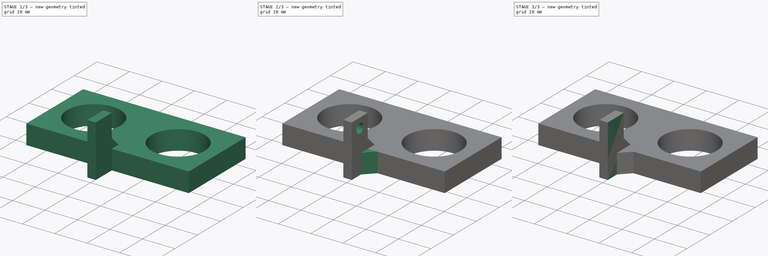
[diagram: build sequence overview — one tinted view per stage of 3, left to right]
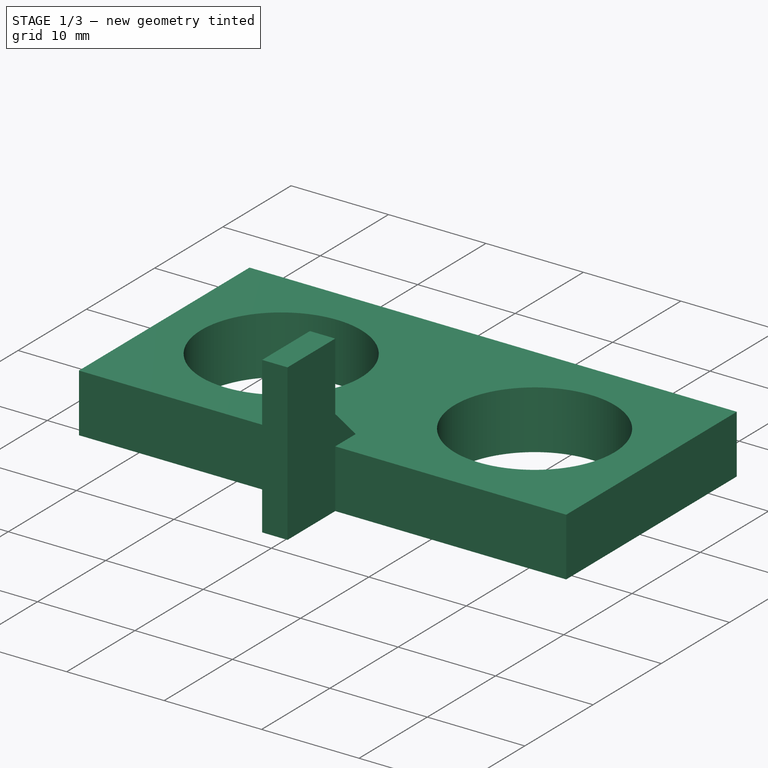
[diagram: stage 1 of 3 — iso view after this stage's code; geometry added in this stage tinted green]
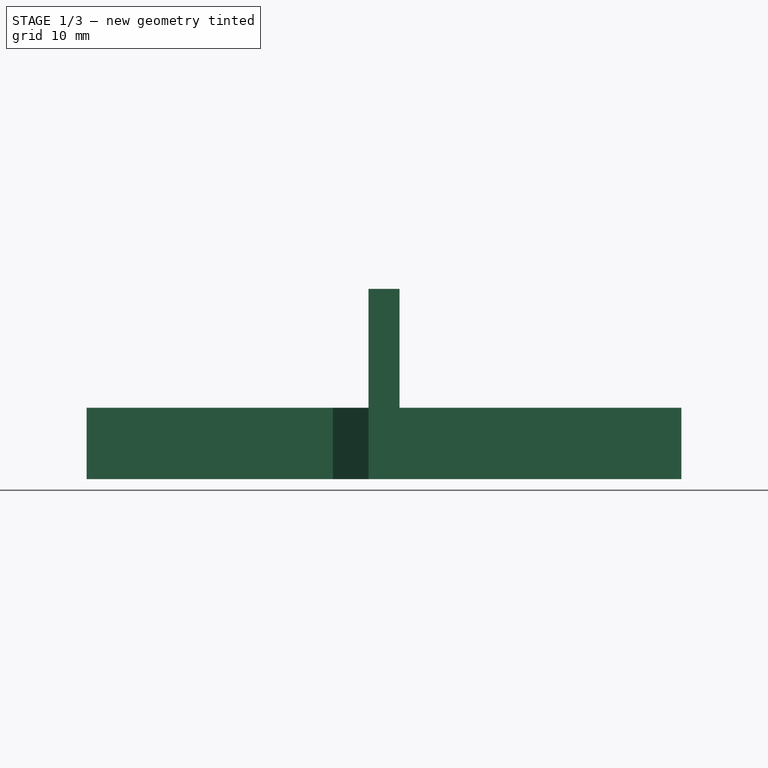
[diagram: stage 1 of 3 — front view after this stage's code; geometry added in this stage tinted green]
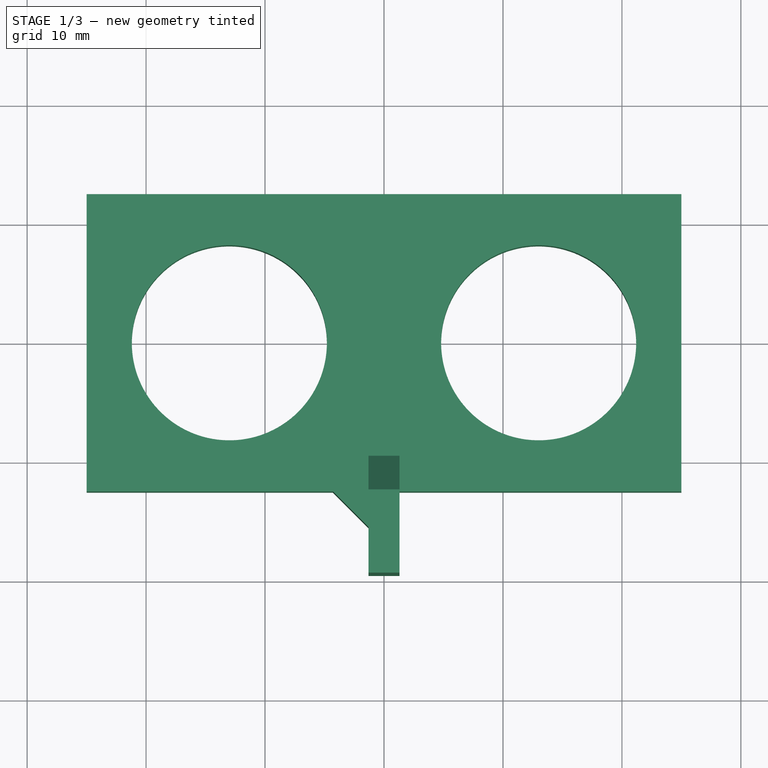
[diagram: stage 1 of 3 — top view after this stage's code; geometry added in this stage tinted green]
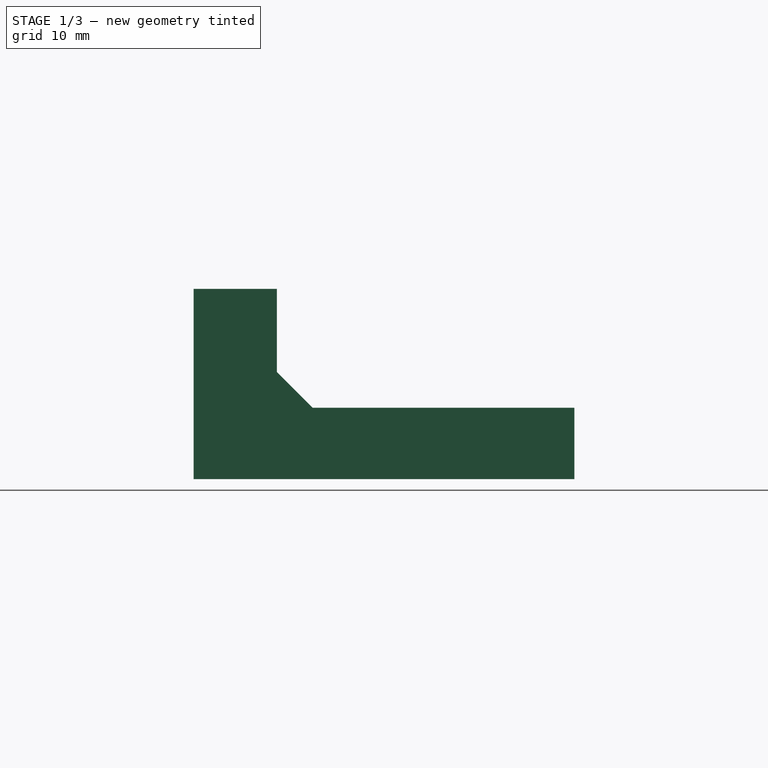
[diagram: stage 1 of 3 — right view after this stage's code; geometry added in this stage tinted green]
FCSTD DOCUMENT  (FreeCAD 0.16R6712 (Git))
Label: hcsr04Sensor05
License: All rights reserved
LicenseURL: http://en.wikipedia.org/wiki/All_rights_reserved
objects: Sketcher::SketchObject×4, PartDesign::Pad×3, PartDesign::Chamfer×3, Part::Feature×1, PartDesign::Pocket×1
note: 16 computed .brp shape members not serialized (recipe doc carries the construction recipe); baked Part::Feature solids carry a one-line shape summary decoded from their .brp

FEATURE [Part::Feature] Pad002001  label="Pad003"
  shape: bbox 50 x 32 x 16 mm, 14 faces (baked)
FEATURE [PartDesign::Chamfer] Chamfer
  Base = -> Pad002001 [Edge13]
  Size = 3
FEATURE [PartDesign::Chamfer] Chamfer001
  Base = -> Chamfer [Edge15]
  Size = 3
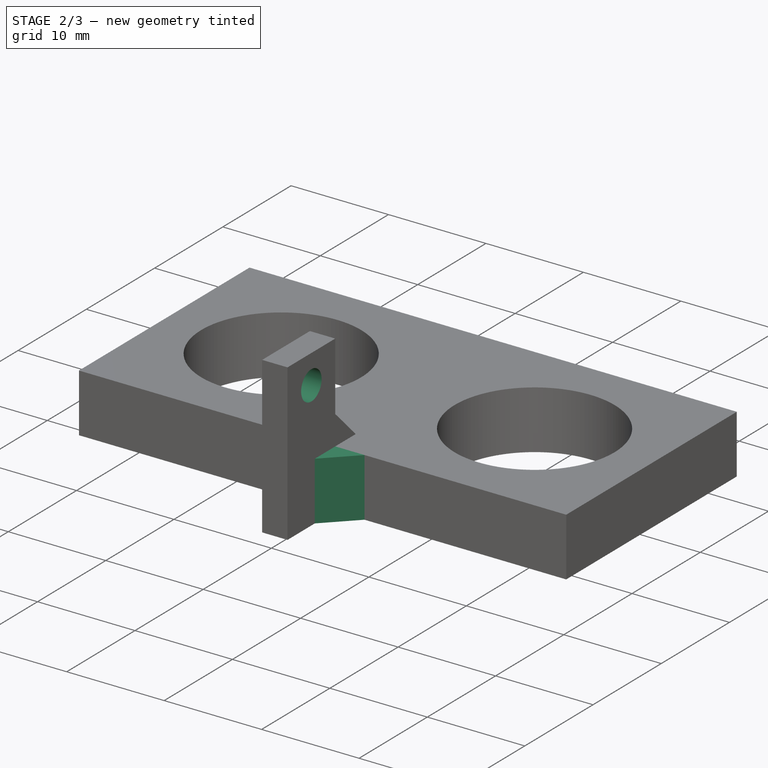
[diagram: stage 2 of 3 — iso view after this stage's code; geometry added in this stage tinted green]
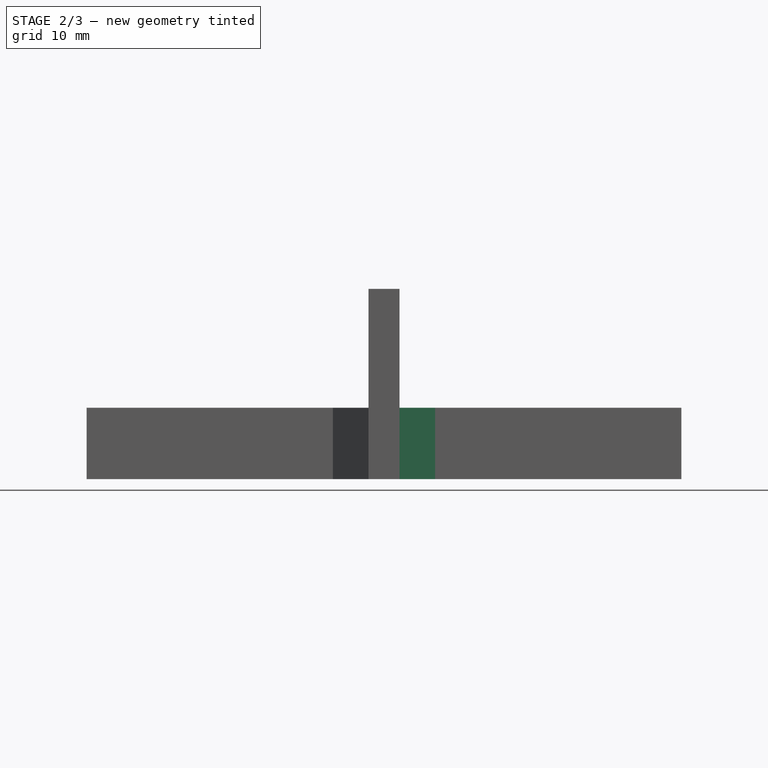
[diagram: stage 2 of 3 — front view after this stage's code; geometry added in this stage tinted green]
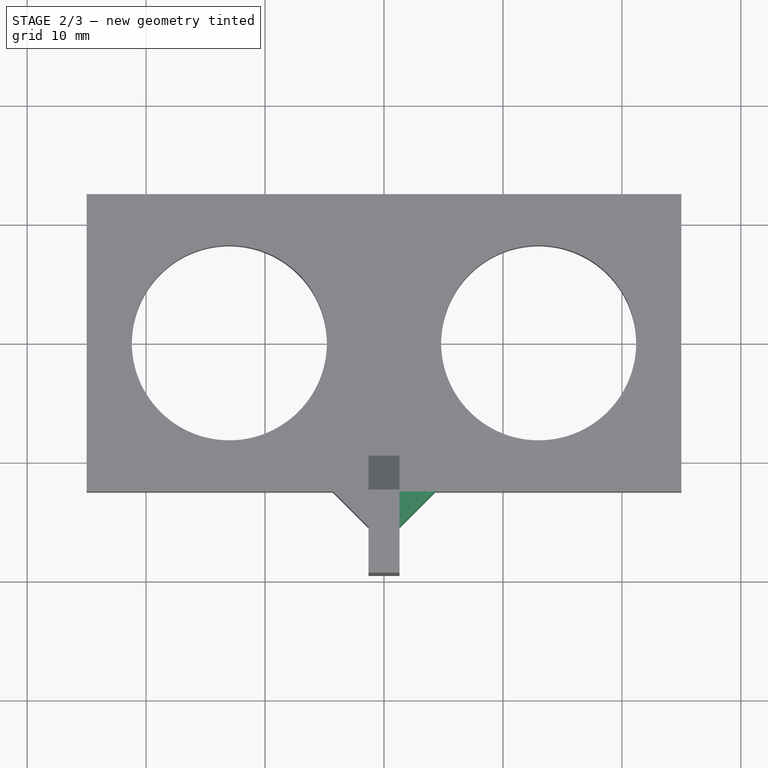
[diagram: stage 2 of 3 — top view after this stage's code; geometry added in this stage tinted green]
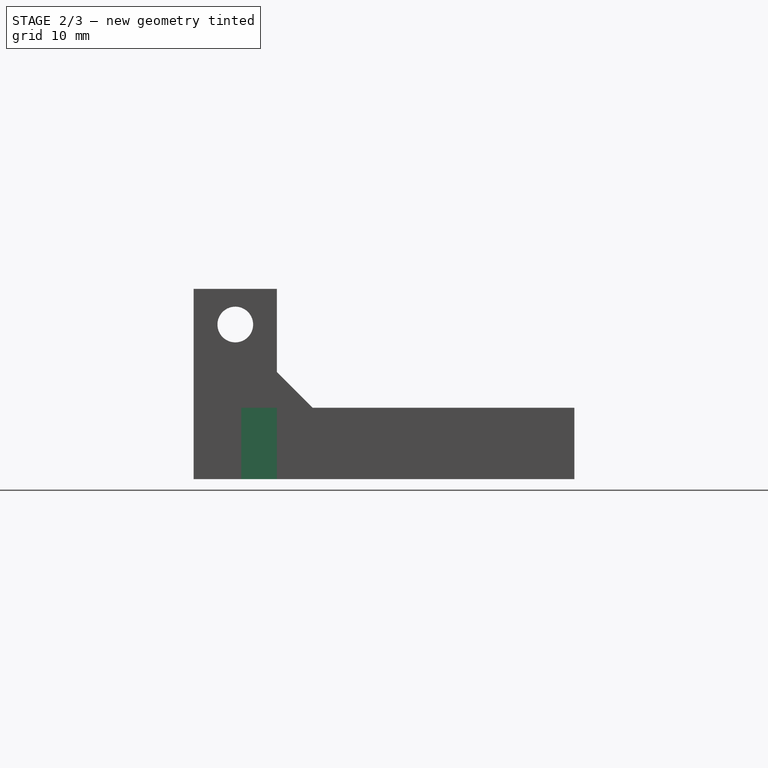
[diagram: stage 2 of 3 — right view after this stage's code; geometry added in this stage tinted green]
FEATURE [Sketcher::SketchObject] Sketch
  sketch-geometry (6):
    g0: LineSegment StartX=-25 StartY=12.5 StartZ=0 EndX=25 EndY=12.5 EndZ=0
    g1: LineSegment StartX=25 StartY=12.5 StartZ=0 EndX=25 EndY=-12.5 EndZ=0
    g2: LineSegment StartX=25 StartY=-12.5 StartZ=0 EndX=-25 EndY=-12.5 EndZ=0
    g3: LineSegment StartX=-25 StartY=-12.5 StartZ=0 EndX=-25 EndY=12.5 EndZ=0
    g4: Circle CenterX=-13 CenterY=0 CenterZ=0 NormalX=0 NormalY=0 NormalZ=1 Radius=8.2
    g5: Circle CenterX=13 CenterY=0 CenterZ=0 NormalX=0 NormalY=0 NormalZ=1 Radius=8.2
  constraints (17):
    c: Coincident(g0,g1)
    c: Coincident(g1,g2)
    c: Coincident(g2,g3)
    c: Coincident(g3,g0)
    c: Horizontal(g0)
    c: Horizontal(g2)
    c: Vertical(g1)
    c: Vertical(g3)
    c: Symmetric(g0,g2,g-1)
    c: Symmetric(g0,g0,g-2)
    c: DistanceX(g0,g0) = 50
    c: DistanceY(g2,g0) = 25
    c: Equal(g4,g5)
    c: Symmetric(g4,g5,g-2)
    c: DistanceY(g4,g0) = 12.5
    c: DistanceX(g4,g5) = 26
    c: Radius(g4) = 8.2
FEATURE [PartDesign::Pad] Pad
  Length = 6
  Length2 = 100
  Sketch = -> Sketch
  Type = 0
FEATURE [PartDesign::Chamfer] Chamfer002
  Base = -> Chamfer001 [Edge32]
  Size = 3
FEATURE [Sketcher::SketchObject] Sketch003
  ExternalGeometry = -> [Chamfer002]
  Placement = pos=(-1.3,0,0) rot=(0.57735,-0.57735,-0.57735;2.0944rad)
  Support = -> Chamfer002 [Face10]
  sketch-geometry (1):
    g0: Circle CenterX=16 CenterY=13 CenterZ=0 NormalX=0 NormalY=0 NormalZ=1 Radius=1.5
  constraints (3):
    c: DistanceX(g-4,g0) = 3.5
    c: DistanceY(g0,g-3) = 3
    c: Radius(g0) = 1.5
FEATURE [PartDesign::Pocket] Pocket
  Length = 5
  Sketch = -> Sketch003
  Type = 1
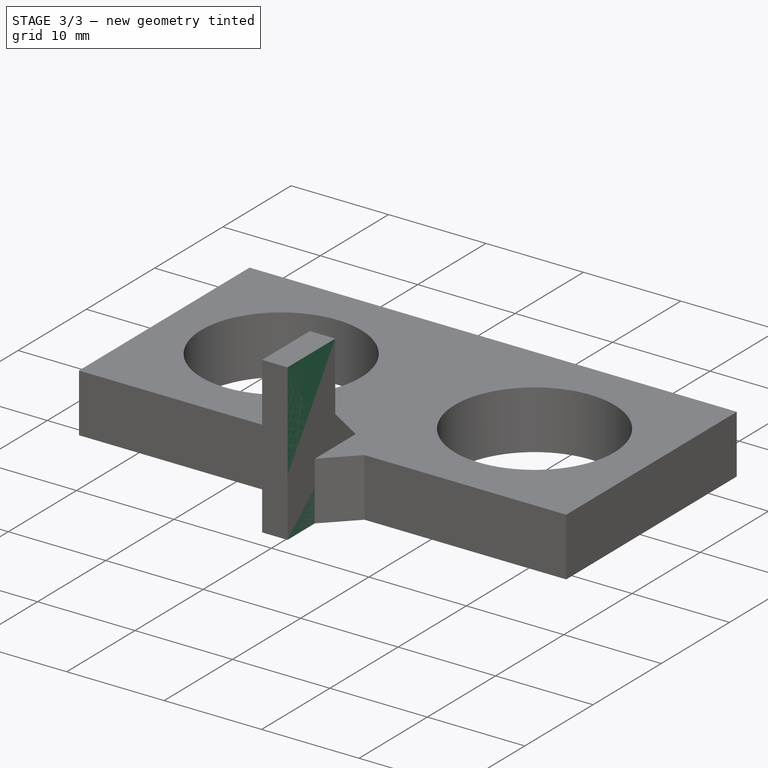
[diagram: stage 3 of 3 — iso view after this stage's code; geometry added in this stage tinted green]
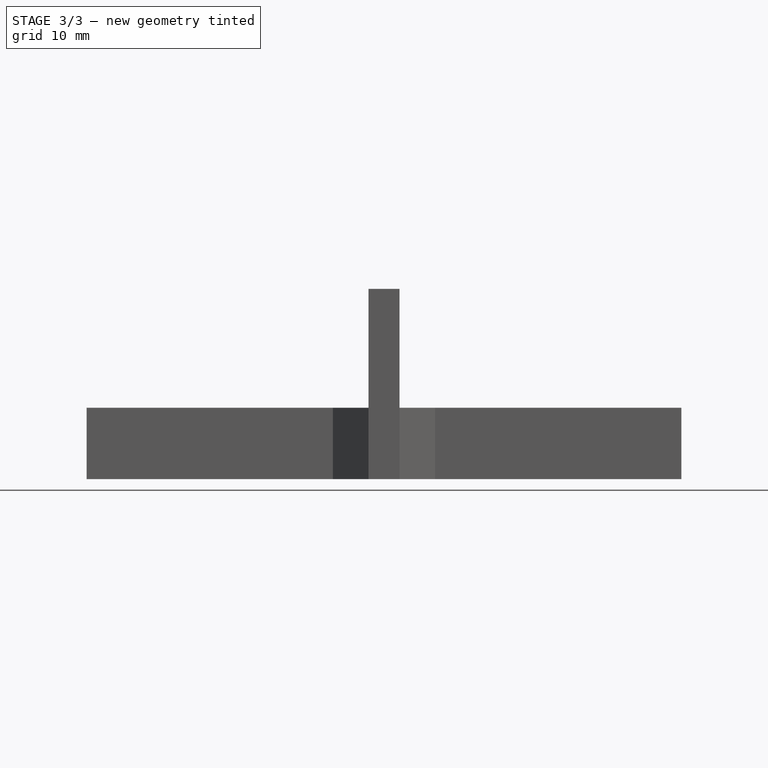
[diagram: stage 3 of 3 — front view after this stage's code; geometry added in this stage tinted green]
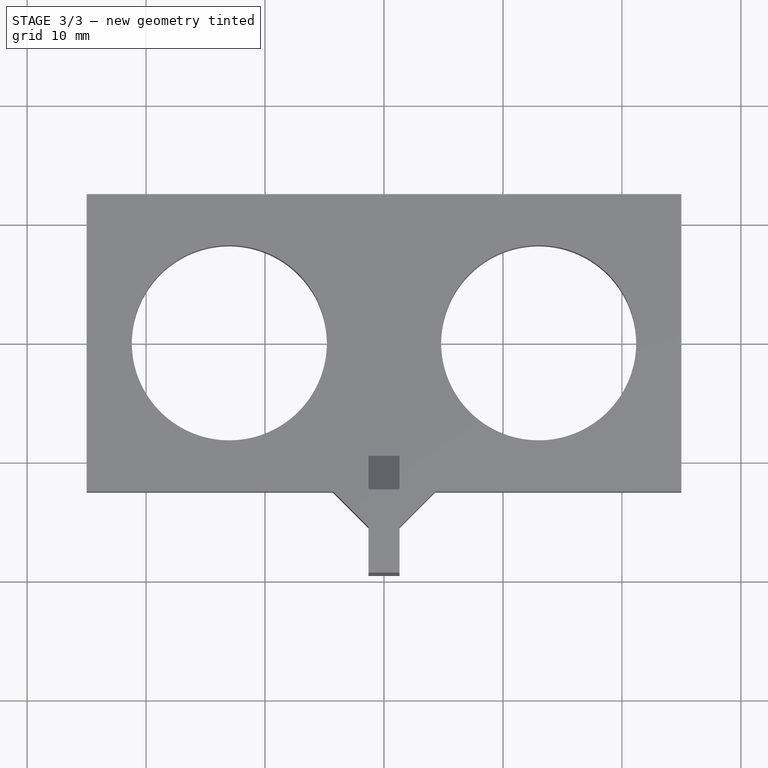
[diagram: stage 3 of 3 — top view after this stage's code; geometry added in this stage tinted green]
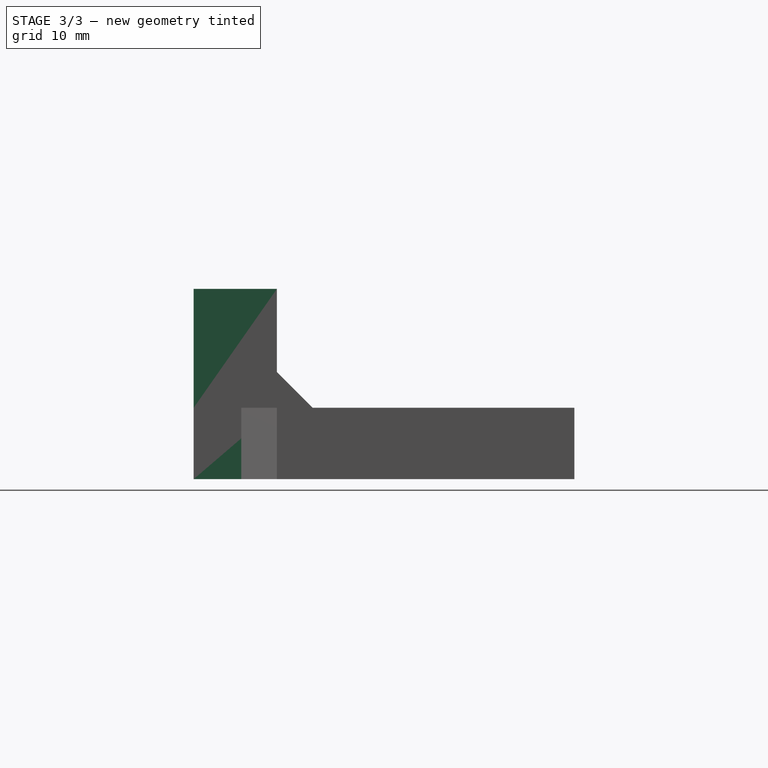
[diagram: stage 3 of 3 — right view after this stage's code; geometry added in this stage tinted green]
FEATURE [Sketcher::SketchObject] Sketch001
  ExternalGeometry = -> [Pad]
  Placement = pos=(0,-12.5,0) rot=(1,0,0;1.5708rad)
  Support = -> Pad [Face3]
  sketch-geometry (4):
    g0: LineSegment StartX=-1.3 StartY=6 StartZ=0 EndX=1.3 EndY=6 EndZ=0
    g1: LineSegment StartX=1.3 StartY=6 StartZ=0 EndX=1.3 EndY=0 EndZ=0
    g2: LineSegment StartX=1.3 StartY=0 StartZ=0 EndX=-1.3 EndY=0 EndZ=0
    g3: LineSegment StartX=-1.3 StartY=0 StartZ=0 EndX=-1.3 EndY=6 EndZ=0
  constraints (12):
    c: Coincident(g0,g1)
    c: Coincident(g1,g2)
    c: Coincident(g2,g3)
    c: Coincident(g3,g0)
    c: Horizontal(g0)
    c: Horizontal(g2)
    c: Vertical(g1)
    c: Vertical(g3)
    c: Symmetric(g0,g0,g-2)
    c: DistanceY(g0,g-5) = 0
    c: DistanceY(g-5,g2) = 0
    c: DistanceX(g0,g0) = 2.6
FEATURE [PartDesign::Pad] Pad001
  Length = 7
  Length2 = 100
  Sketch = -> Sketch001
  Type = 0
FEATURE [Sketcher::SketchObject] Sketch002
  ExternalGeometry = -> [Pad001]
  Placement = pos=(0,0,6) rot=(0,0,1;0rad)
  Support = -> Pad001 [Face11]
  sketch-geometry (4):
    g0: LineSegment StartX=-1.3 StartY=-12.5 StartZ=0 EndX=1.3 EndY=-12.5 EndZ=0
    g1: LineSegment StartX=1.3 StartY=-12.5 StartZ=0 EndX=1.3 EndY=-19.5 EndZ=0
    g2: LineSegment StartX=1.3 StartY=-19.5 StartZ=0 EndX=-1.3 EndY=-19.5 EndZ=0
    g3: LineSegment StartX=-1.3 StartY=-19.5 StartZ=0 EndX=-1.3 EndY=-12.5 EndZ=0
  constraints (11):
    c: Coincident(g0,g1)
    c: Coincident(g1,g2)
    c: Coincident(g2,g3)
    c: Coincident(g3,g0)
    c: Horizontal(g0)
    c: Horizontal(g2)
    c: Vertical(g1)
    c: Vertical(g3)
    c: Coincident(g-4,g0)
    c: Coincident(g-6,g0)
    c: Coincident(g2,g-5)
FEATURE [PartDesign::Pad] Pad002
  Length = 10
  Length2 = 100
  Sketch = -> Sketch002
  Type = 0
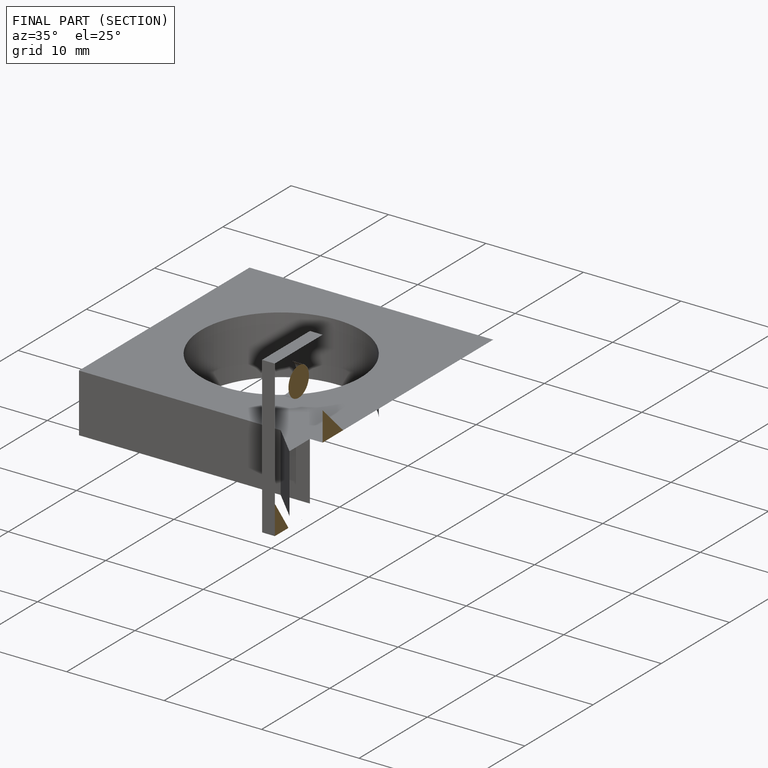
[diagram: finished part — half-section view (interior)]
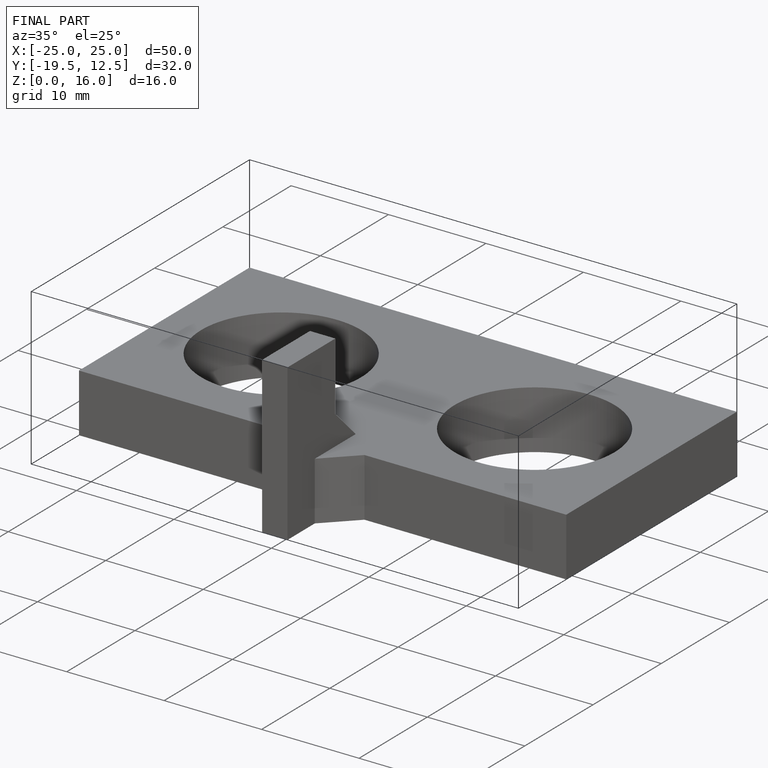
[diagram: finished part — iso view with bounding-box wireframe]
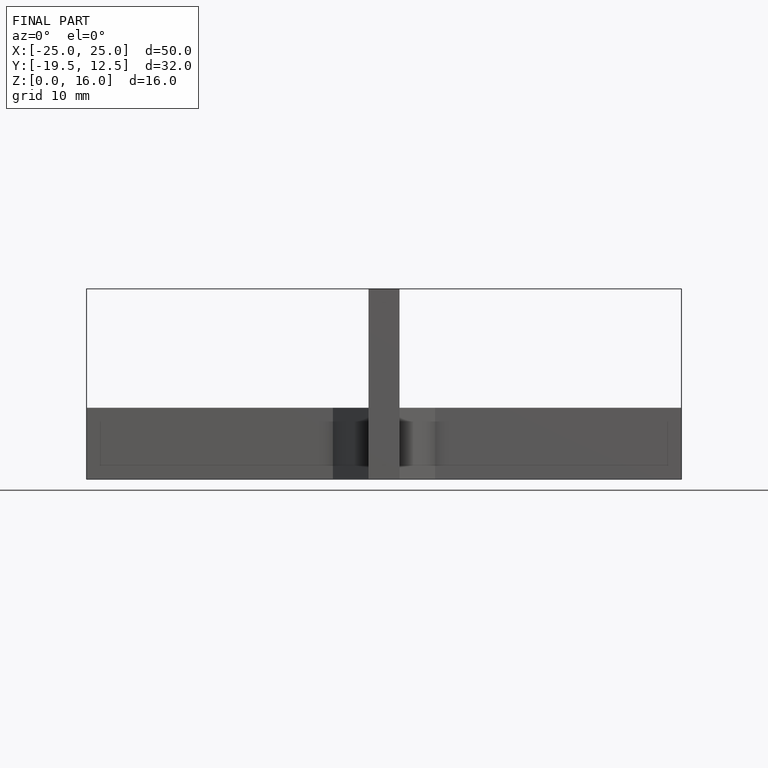
[diagram: finished part — front view with bounding-box wireframe]
